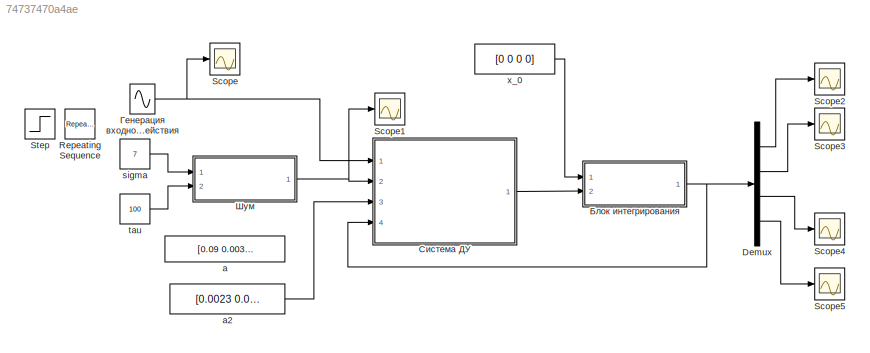
MODEL slx_74737470a4ae
KIND model
CONFIG AbsTol = auto
CONFIG EnableMultiTasking = off
CONFIG FixedStep = auto
CONFIG MaxStep = auto
CONFIG MinStep = auto
CONFIG RelTol = 1e-3
CONFIG SampleTimeConstraint = Unconstrained
CONFIG SolverName = VariableStepAuto
CONFIG StartTime = 0.0
CONFIG StopTime = 100.0
BLOCK [Demux] Demux
  Ports = [1, 4]
BLOCK [Reference] Repeating Sequence  REF=simulink/Sources/Repeating
Sequence
  Ports = [0, 1]
  SourceBlock = simulink/Sources/Repeating\nSequence
  SourceProductBaseCode = SL
  SourceType = Repeating table
BLOCK [Scope] Scope
  Floating = off
  NumInputPorts = 1
  Ports = [1]
  ScopeSpecificationString = Simulink.scopes.TimeScopeBlockCfg('CurrentConfiguration', extmgr.ConfigurationSet(extmgr.Configuration('Core','General UI',true),extmgr.Configuration('Core','Source UI',true),extmgr.Configuration('Sources','WiredSimulink',true),extmgr.Configuration('Visuals','Time Domain',true,'SerializedDisplays',{struct('MinYLimReal','-1.25','MaxYLimReal','1.25','YLabelReal','','MinYLimMag','0.00000','MaxYLimMag...<+1375ch>
BLOCK [Scope] Scope1
  Floating = off
  NumInputPorts = 1
  Ports = [1]
  ScopeSpecificationString = Simulink.scopes.TimeScopeBlockCfg('CurrentConfiguration', extmgr.ConfigurationSet(extmgr.Configuration('Core','General UI',true),extmgr.Configuration('Core','Source UI',true),extmgr.Configuration('Sources','WiredSimulink',true,'DataLoggingVariableName','ScopeData1'),extmgr.Configuration('Visuals','Time Domain',true,'SerializedDisplays',{struct('MinYLimReal','-2.77122','MaxYLimReal','2.81954','YLab...<+1402ch>
BLOCK [Scope] Scope2
  Floating = off
  NumInputPorts = 1
  Ports = [1]
  ScopeSpecificationString = Simulink.scopes.TimeScopeBlockCfg('CurrentConfiguration', extmgr.ConfigurationSet(extmgr.Configuration('Core','General UI',true),extmgr.Configuration('Core','Source UI',true),extmgr.Configuration('Sources','WiredSimulink',true,'DataLoggingVariableName','ScopeData2'),extmgr.Configuration('Visuals','Time Domain',true,'SerializedDisplays',{struct('MinYLimReal','-26077060.0005','MaxYLimReal','14208033...<+1422ch>
BLOCK [Scope] Scope3
  Floating = off
  NumInputPorts = 1
  Ports = [1]
  ScopeSpecificationString = Simulink.scopes.TimeScopeBlockCfg('CurrentConfiguration', extmgr.ConfigurationSet(extmgr.Configuration('Core','General UI',true),extmgr.Configuration('Core','Source UI',true),extmgr.Configuration('Sources','WiredSimulink',true,'DataLoggingVariableName','ScopeData3'),extmgr.Configuration('Visuals','Time Domain',true,'SerializedDisplays',{struct('MinYLimReal','-16031799.99942','MaxYLimReal','1695179...<+1420ch>
BLOCK [Scope] Scope4
  Floating = off
  NumInputPorts = 1
  Ports = [1]
  ScopeSpecificationString = Simulink.scopes.TimeScopeBlockCfg('CurrentConfiguration', extmgr.ConfigurationSet(extmgr.Configuration('Core','General UI',true),extmgr.Configuration('Core','Source UI',true),extmgr.Configuration('Sources','WiredSimulink',true,'DataLoggingVariableName','ScopeData4'),extmgr.Configuration('Visuals','Time Domain',true,'SerializedDisplays',{struct('MinYLimReal','-10955978.69491','MaxYLimReal','2871014...<+1418ch>
BLOCK [Scope] Scope5
  Floating = off
  NumInputPorts = 1
  Ports = [1]
  ScopeSpecificationString = Simulink.scopes.TimeScopeBlockCfg('CurrentConfiguration', extmgr.ConfigurationSet(extmgr.Configuration('Core','General UI',true),extmgr.Configuration('Core','Source UI',true),extmgr.Configuration('Sources','WiredSimulink',true,'DataLoggingVariableName','ScopeData5'),extmgr.Configuration('Visuals','Time Domain',true,'SerializedDisplays',{struct('MinYLimReal','-2394350.09368','MaxYLimReal','446286.8...<+1408ch>
BLOCK [Step] Step
  SampleTime = 0
  Time = 10
BLOCK [Constant] a
  Value = [0.09 0.003 0.002 0.0042]
BLOCK [Constant] a2
  Value = [0.0023 0.0017 0.013 0]
BLOCK [Constant] sigma
  Value = 7
BLOCK [Constant] tau
  Value = 100
BLOCK [Constant] x_0
  Value = [0 0 0 0]
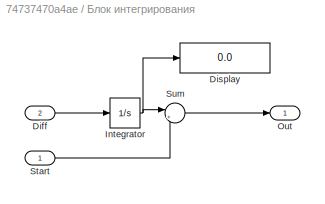
BLOCK [SubSystem] Блок интегрирования
  Ports = [2, 1]
  RequestExecContextInheritance = off
BLOCK [Inport] Блок интегрирования/Diff
  Port = 2
BLOCK [Display] Блок интегрирования/Display
  Decimation = 1
  Ports = [1]
BLOCK [Integrator] Блок интегрирования/Integrator
  Ports = [1, 1]
BLOCK [Outport] Блок интегрирования/Out
BLOCK [Inport] Блок интегрирования/Start
BLOCK [Sum] Блок интегрирования/Sum
  Inputs = |++
  Ports = [2, 1]
BLOCK [Sin] Генерация входного воздействия
  Frequency = 0.05
  Ports = [0, 1]
  SampleTime = 0
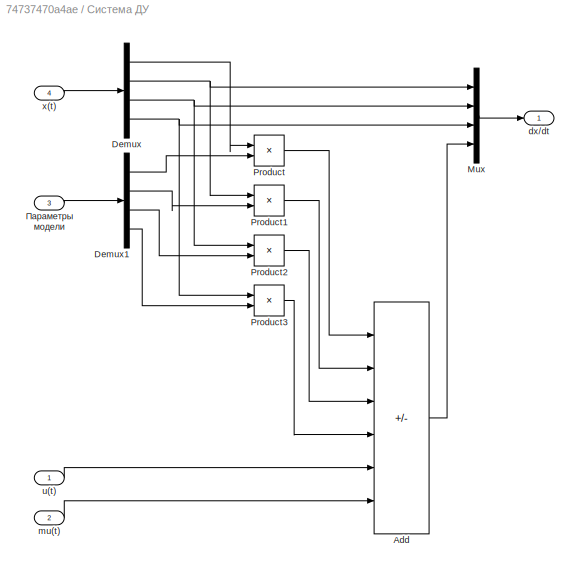
BLOCK [SubSystem] Система ДУ
  Ports = [4, 1]
  RequestExecContextInheritance = off
BLOCK [Sum] Система ДУ/Add
  IconShape = rectangular
  Inputs = ----++
  Ports = [6, 1]
BLOCK [Demux] Система ДУ/Demux
  Ports = [1, 4]
BLOCK [Demux] Система ДУ/Demux1
  Ports = [1, 4]
BLOCK [Mux] Система ДУ/Mux
  DisplayOption = bar
  Ports = [4, 1]
BLOCK [Product] Система ДУ/Product
  Ports = [2, 1]
BLOCK [Product] Система ДУ/Product1
  Ports = [2, 1]
BLOCK [Product] Система ДУ/Product2
  Ports = [2, 1]
BLOCK [Product] Система ДУ/Product3
  Ports = [2, 1]
BLOCK [Outport] Система ДУ/dx//dt
BLOCK [Inport] Система ДУ/mu(t)
  Port = 2
BLOCK [Inport] Система ДУ/u(t)
BLOCK [Inport] Система ДУ/x(t)
  Port = 4
BLOCK [Inport] Система ДУ/Параметры модели
  Port = 3
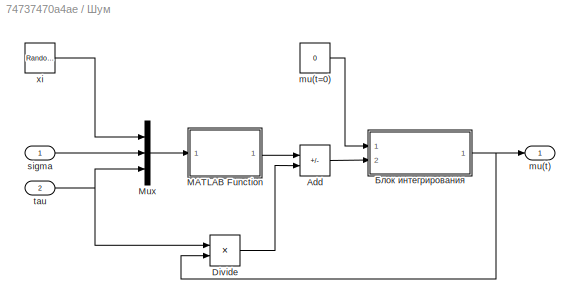
BLOCK [SubSystem] Шум
  Ports = [2, 1]
  RequestExecContextInheritance = off
BLOCK [Sum] Шум/Add
  IconShape = rectangular
  Inputs = +-
  Ports = [2, 1]
BLOCK [Product] Шум/Divide
  Inputs = /*
  Ports = [2, 1]
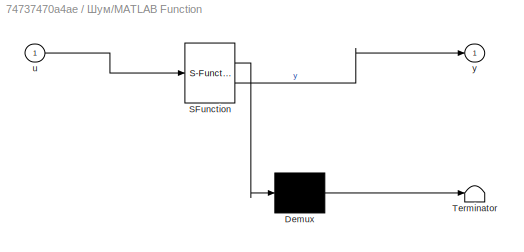
BLOCK [SubSystem] Шум/MATLAB Function
  ErrorFcn = Stateflow.Translate.translate
  PermitHierarchicalResolution = ExplicitOnly
  Ports = [1, 1]
  RequestExecContextInheritance = off
  SFBlockType = MATLAB Function
  TreatAsAtomicUnit = on
BLOCK [Demux] Шум/MATLAB Function/ Demux 
  Outputs = 1
  Ports = [1, 1]
BLOCK [S-Function] Шум/MATLAB Function/ SFunction 
  EnableBusSupport = on
  FunctionName = sf_sfun
  PortCounts = [1 2]
  Ports = [1, 2]
  SFcnIsStateOwnerBlock = off
  SFunctionDeploymentMode = off
  Tag = Stateflow S-Function 2
BLOCK [Terminator] Шум/MATLAB Function/ Terminator 
BLOCK [Inport] Шум/MATLAB Function/u
BLOCK [Outport] Шум/MATLAB Function/y
BLOCK [Mux] Шум/Mux
  DisplayOption = bar
  Inputs = 3
  Ports = [3, 1]
BLOCK [Outport] Шум/mu(t)
BLOCK [Constant] Шум/mu(t=0)
  Value = 0
BLOCK [Inport] Шум/sigma
BLOCK [Inport] Шум/tau
  Port = 2
BLOCK [RandomNumber] Шум/xi
  SampleTime = 0.1
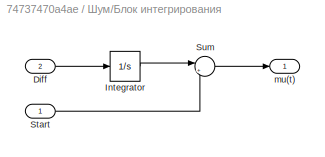
BLOCK [SubSystem] Шум/Блок интегрирования
  Ports = [2, 1]
  RequestExecContextInheritance = off
BLOCK [Inport] Шум/Блок интегрирования/Diff
  Port = 2
BLOCK [Integrator] Шум/Блок интегрирования/Integrator
  Ports = [1, 1]
BLOCK [Inport] Шум/Блок интегрирования/Start
BLOCK [Sum] Шум/Блок интегрирования/Sum
  Inputs = |++
  Ports = [2, 1]
BLOCK [Outport] Шум/Блок интегрирования/mu(t)
LINE Demux:1 -> Scope2:1
LINE Demux:2 -> Scope3:1
LINE Demux:3 -> Scope4:1
LINE Demux:4 -> Scope5:1
LINE a2:1 -> Система ДУ:3
LINE sigma:1 -> Шум:1
LINE tau:1 -> Шум:2
LINE x_0:1 -> Блок интегрирования:1
LINE Блок интегрирования/Diff:1 -> Блок интегрирования/Integrator:1
NET Блок интегрирования/Integrator:1 -> Блок интегрирования/Display:1, Блок интегрирования/Sum:1
LINE Блок интегрирования/Start:1 -> Блок интегрирования/Sum:2
LINE Блок интегрирования/Sum:1 -> Блок интегрирования/Out:1
NET Блок интегрирования:1 -> Demux:1, Система ДУ:4
NET Генерация входного воздействия:1 -> Scope:1, Система ДУ:1
LINE Система ДУ/Add:1 -> Система ДУ/Mux:4
LINE Система ДУ/Demux1:1 -> Система ДУ/Product:2
LINE Система ДУ/Demux1:2 -> Система ДУ/Product1:2
LINE Система ДУ/Demux1:3 -> Система ДУ/Product2:2
LINE Система ДУ/Demux1:4 -> Система ДУ/Product3:2
LINE Система ДУ/Demux:1 -> Система ДУ/Product:1
NET Система ДУ/Demux:2 -> Система ДУ/Mux:1, Система ДУ/Product1:1
NET Система ДУ/Demux:3 -> Система ДУ/Mux:2, Система ДУ/Product2:1
NET Система ДУ/Demux:4 -> Система ДУ/Mux:3, Система ДУ/Product3:1
LINE Система ДУ/Mux:1 -> Система ДУ/dx//dt:1
LINE Система ДУ/Product1:1 -> Система ДУ/Add:2
LINE Система ДУ/Product2:1 -> Система ДУ/Add:3
LINE Система ДУ/Product3:1 -> Система ДУ/Add:4
LINE Система ДУ/Product:1 -> Система ДУ/Add:1
LINE Система ДУ/mu(t):1 -> Система ДУ/Add:6
LINE Система ДУ/u(t):1 -> Система ДУ/Add:5
LINE Система ДУ/x(t):1 -> Система ДУ/Demux:1
LINE Система ДУ/Параметры модели:1 -> Система ДУ/Demux1:1
LINE Система ДУ:1 -> Блок интегрирования:2
LINE Шум/Add:1 -> Шум/Блок интегрирования:2
LINE Шум/Divide:1 -> Шум/Add:2
LINE Шум/MATLAB Function:1 -> Шум/Add:1
LINE Шум/Mux:1 -> Шум/MATLAB Function:1
LINE Шум/mu(t=0):1 -> Шум/Блок интегрирования:1
LINE Шум/sigma:1 -> Шум/Mux:2
NET Шум/tau:1 -> Шум/Divide:1, Шум/Mux:3
LINE Шум/xi:1 -> Шум/Mux:1
LINE Шум/Блок интегрирования/Diff:1 -> Шум/Блок интегрирования/Integrator:1
LINE Шум/Блок интегрирования/Integrator:1 -> Шум/Блок интегрирования/Sum:1
LINE Шум/Блок интегрирования/Start:1 -> Шум/Блок интегрирования/Sum:2
LINE Шум/Блок интегрирования/Sum:1 -> Шум/Блок интегрирования/mu(t):1
NET Шум/Блок интегрирования:1 -> Шум/Divide:2, Шум/mu(t):1
NET Шум:1 -> Scope1:1, Система ДУ:2
note: NET lines group one-source signal fan-out (src -> all destinations, sorted); 1:1 wires keep LINE
CHART Шум/MATLAB Function states=1 transitions=1
  STATE_LABEL 'eML_blk_kernel()'
  STATE_LABEL 'SCRIPT:\nfunction y = fcn(u)\n    xi=u(1);\n    sigma=u(2);\n    tau=u(3);\n    alpha=1/tau;\n    k_f=sigma*sqrt(2*alpha);\ny = k_f*xi;\n'
CHART  states=0 transitions=0
